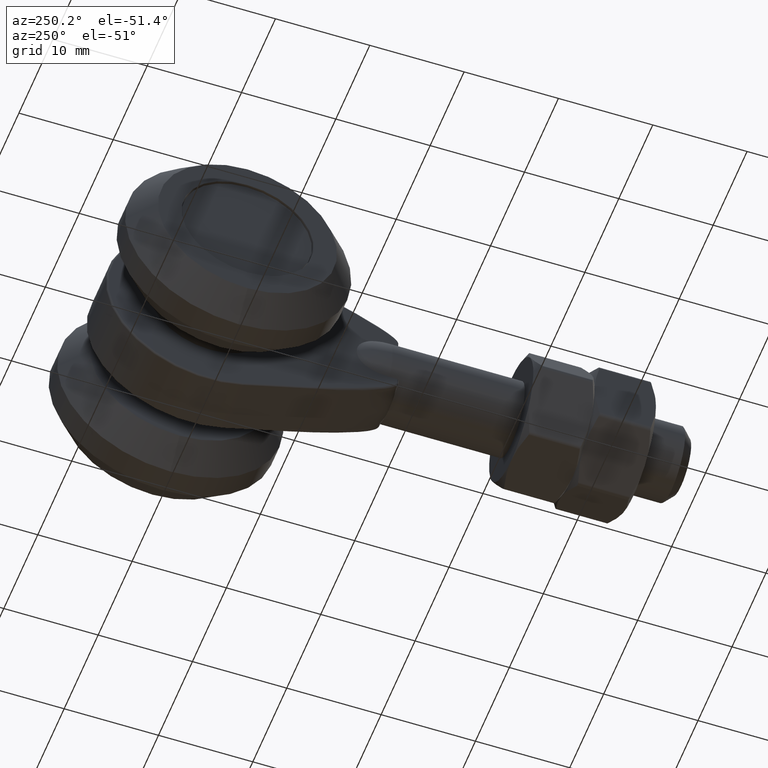
[diagram: clean part render]
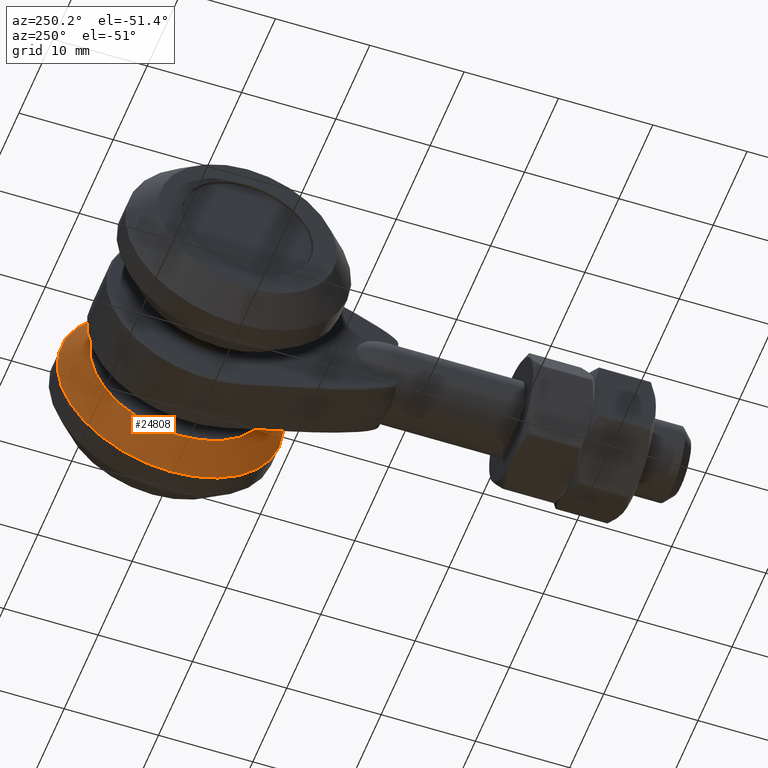
[diagram: same view with one face highlighted and labeled with its STEP entity id]
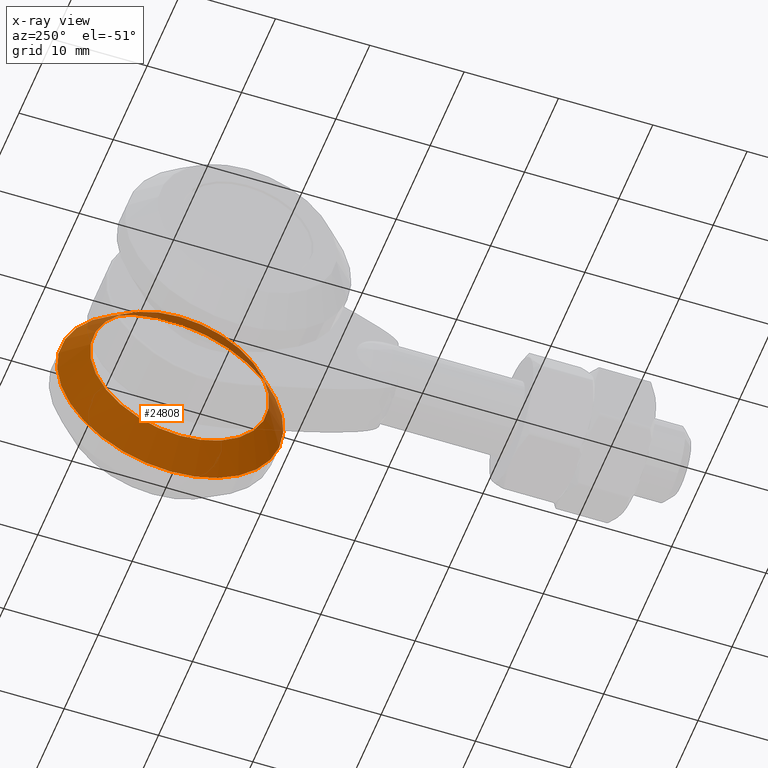
[diagram: x-ray of the same camera — body ghosted, the highlighted face saturated]
A machine part, auxiliary view. The second image highlights one B-rep face of the part: STEP entity #24808.
The next image is the same camera in x-ray: the body ghosted, the highlighted face saturated — about 13% of this face is hidden behind the body in this view.
In plain terms, the highlighted conical surface has half-angle 42.274 deg.
Its self-contained STEP definition (entity closure, byte-faithful):
#1007 = CARTESIAN_POINT ( 'NONE',  ( 8.749999999999998224, 20.00000000000000355, 0.000000000000000000 ) ) ;
#1809 = CARTESIAN_POINT ( 'NONE',  ( 6.000000000000000888, 20.00000000000000355, 0.000000000000000000 ) ) ;
#2347 = FACE_BOUND ( 'NONE', #25709, .T. ) ;
#2737 = EDGE_CURVE ( 'NONE', #4060, #4060, #7291, .T. ) ;
#3153 = DIRECTION ( 'NONE',  ( 1.000000000000000000, -0.000000000000000000, -0.000000000000000000 ) ) ;
#3713 = CONICAL_SURFACE ( 'NONE', #7067, 11.99999999999999645, 0.7378150601204660486 ) ;
#4060 = VERTEX_POINT ( 'NONE', #5040 ) ;
#5040 = CARTESIAN_POINT ( 'NONE',  ( 8.749999999999998224, 20.00000000000000355, -11.99999999999999645 ) ) ;
#7067 = AXIS2_PLACEMENT_3D ( 'NONE', #11290, #26683, #15562 ) ;
#7291 = CIRCLE ( 'NONE', #26580, 11.99999999999999645 ) ;
#9325 = DIRECTION ( 'NONE',  ( 0.000000000000000000, 0.000000000000000000, -1.000000000000000000 ) ) ;
#11290 = CARTESIAN_POINT ( 'NONE',  ( 8.749999999999998224, 20.00000000000000355, 0.000000000000000000 ) ) ;
#12196 = DIRECTION ( 'NONE',  ( 1.000000000000000000, -0.000000000000000000, -0.000000000000000000 ) ) ;
#14750 = DIRECTION ( 'NONE',  ( 0.000000000000000000, 0.000000000000000000, -1.000000000000000000 ) ) ;
#15147 = CIRCLE ( 'NONE', #25523, 9.499999999999994671 ) ;
#15467 = VERTEX_POINT ( 'NONE', #22620 ) ;
#15562 = DIRECTION ( 'NONE',  ( 0.000000000000000000, 0.000000000000000000, -1.000000000000000000 ) ) ;
#18046 = EDGE_LOOP ( 'NONE', ( #20535 ) ) ;
#20535 = ORIENTED_EDGE ( 'NONE', *, *, #2737, .F. ) ;
#22620 = CARTESIAN_POINT ( 'NONE',  ( 6.000000000000000888, 20.00000000000000355, -9.499999999999994671 ) ) ;
#24808 = ADVANCED_FACE ( 'NONE', ( #2347, #26571 ), #3713, .T. ) ;
#25523 = AXIS2_PLACEMENT_3D ( 'NONE', #1809, #12196, #14750 ) ;
#25646 = ORIENTED_EDGE ( 'NONE', *, *, #26995, .T. ) ;
#25709 = EDGE_LOOP ( 'NONE', ( #25646 ) ) ;
#26571 = FACE_OUTER_BOUND ( 'NONE', #18046, .T. ) ;
#26580 = AXIS2_PLACEMENT_3D ( 'NONE', #1007, #3153, #9325 ) ;
#26683 = DIRECTION ( 'NONE',  ( 1.000000000000000000, -0.000000000000000000, -0.000000000000000000 ) ) ;
#26995 = EDGE_CURVE ( 'NONE', #15467, #15467, #15147, .T. ) ;